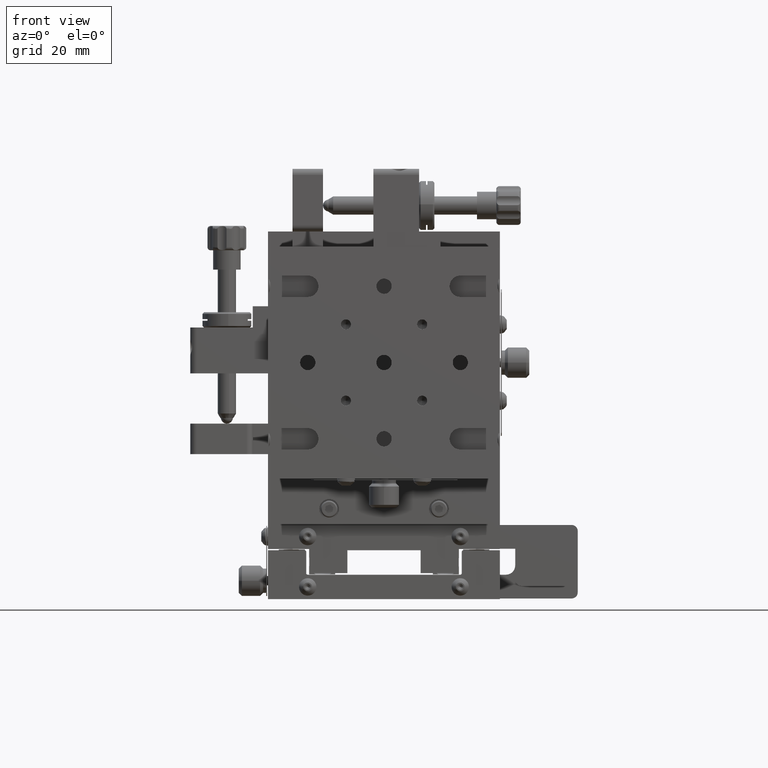
[diagram: clean part render]
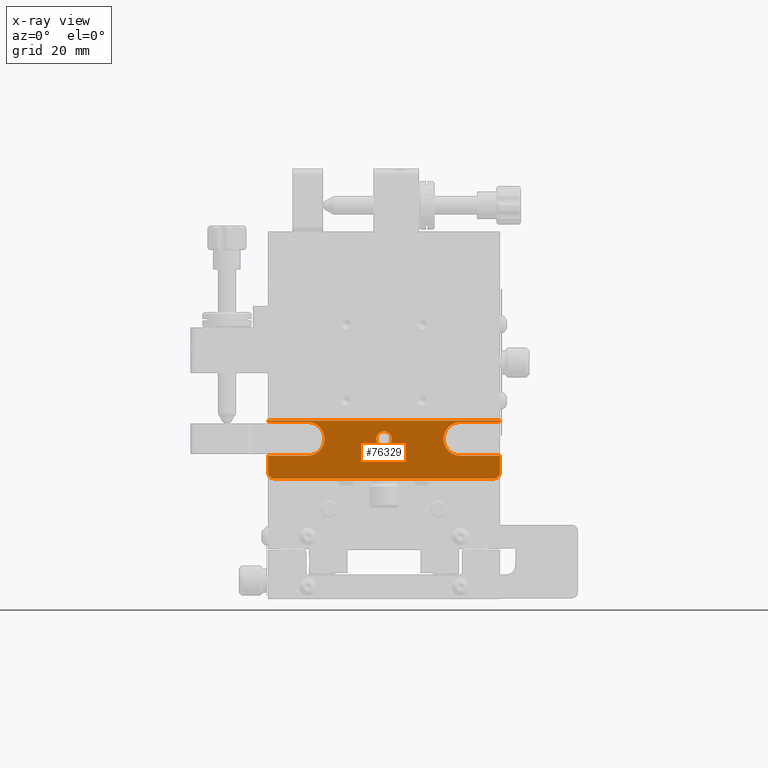
[diagram: x-ray — body ghosted, one internal face saturated and labeled with its STEP entity id]
A machine part, front view, then the same camera in x-ray: the body is ghosted and one INTERNAL B-rep face — a face not visible from any outside direction — is saturated and labeled: STEP entity #76329.
In plain terms, the highlighted planar face has unit normal (0, -1, 0).
Its self-contained STEP definition (entity closure, byte-faithful):
#2143 = VERTEX_POINT ( 'NONE', #3573 ) ;
#3573 = CARTESIAN_POINT ( 'NONE',  ( 31.61747346207639700, 8.990027520144551000, 113.7309604384505800 ) ) ;
#4471 = CIRCLE ( 'NONE', #90873, 2.500000000000002200 ) ;
#5085 = EDGE_CURVE ( 'NONE', #82467, #106534, #130219, .T. ) ;
#8032 = CARTESIAN_POINT ( 'NONE',  ( 6.617473462076397100, 8.990027520144551000, 108.2309604384505800 ) ) ;
#8376 = DIRECTION ( 'NONE',  ( 1.000000000000000000, 0.0000000000000000000, -5.337610695313253400E-016 ) ) ;
#9446 = CARTESIAN_POINT ( 'NONE',  ( -18.38252653792360300, 8.990027520144551000, 108.2309604384505900 ) ) ;
#9633 = ORIENTED_EDGE ( 'NONE', *, *, #42119, .F. ) ;
#10365 = DIRECTION ( 'NONE',  ( 0.0000000000000000000, 0.0000000000000000000, 1.000000000000000000 ) ) ;
#10935 = VECTOR ( 'NONE', #40386, 1000.000000000000000 ) ;
#11052 = EDGE_CURVE ( 'NONE', #2143, #80396, #120192, .T. ) ;
#11391 = CARTESIAN_POINT ( 'NONE',  ( -18.38252653792360300, 8.990027520144551000, 102.7309604384505900 ) ) ;
#12823 = CARTESIAN_POINT ( 'NONE',  ( -29.38252653792359900, 8.990027520144551000, 95.23096043845058000 ) ) ;
#13323 = VERTEX_POINT ( 'NONE', #109148 ) ;
#16205 = AXIS2_PLACEMENT_3D ( 'NONE', #124195, #62598, #42842 ) ;
#18679 = CARTESIAN_POINT ( 'NONE',  ( 42.61747346207639700, 8.990027520144551000, 97.23096043845058000 ) ) ;
#18685 = CARTESIAN_POINT ( 'NONE',  ( -31.38252653792360300, 8.990027520144551000, 95.23096043845058000 ) ) ;
#18710 = AXIS2_PLACEMENT_3D ( 'NONE', #9446, #99435, #19080 ) ;
#19080 = DIRECTION ( 'NONE',  ( 0.0000000000000000000, 0.0000000000000000000, 1.000000000000000000 ) ) ;
#20419 = DIRECTION ( 'NONE',  ( 0.0000000000000000000, -0.0000000000000000000, -1.000000000000000000 ) ) ;
#21317 = EDGE_CURVE ( 'NONE', #98525, #35397, #88778, .T. ) ;
#22374 = VERTEX_POINT ( 'NONE', #54025 ) ;
#22506 = VECTOR ( 'NONE', #85152, 1000.000000000000000 ) ;
#24073 = EDGE_LOOP ( 'NONE', ( #98714, #102158 ) ) ;
#24635 = VECTOR ( 'NONE', #114496, 1000.000000000000000 ) ;
#24991 = CARTESIAN_POINT ( 'NONE',  ( 6.617473462076397100, 8.990027520144551000, 113.7309604384505900 ) ) ;
#25516 = CARTESIAN_POINT ( 'NONE',  ( -18.38252653792360300, 8.990027520144551000, 113.7309604384505900 ) ) ;
#26096 = FACE_OUTER_BOUND ( 'NONE', #47783, .T. ) ;
#27272 = LINE ( 'NONE', #24991, #22506 ) ;
#28284 = VERTEX_POINT ( 'NONE', #68952 ) ;
#29923 = LINE ( 'NONE', #18685, #31420 ) ;
#31420 = VECTOR ( 'NONE', #129343, 1000.000000000000000 ) ;
#31532 = DIRECTION ( 'NONE',  ( 0.0000000000000000000, 0.0000000000000000000, 1.000000000000000000 ) ) ;
#31756 = VECTOR ( 'NONE', #95863, 1000.000000000000000 ) ;
#31932 = CARTESIAN_POINT ( 'NONE',  ( 44.61747346207639700, 8.990027520144551000, 114.2309604384505900 ) ) ;
#35397 = VERTEX_POINT ( 'NONE', #73575 ) ;
#37630 = CARTESIAN_POINT ( 'NONE',  ( 44.61747346207639700, 8.990027520144551000, 114.2309604384505900 ) ) ;
#38452 = VECTOR ( 'NONE', #8376, 1000.000000000000000 ) ;
#38964 = CARTESIAN_POINT ( 'NONE',  ( 6.617473462076397100, 8.990027520144551000, 108.2309604384505800 ) ) ;
#39905 = ORIENTED_EDGE ( 'NONE', *, *, #50976, .T. ) ;
#40386 = DIRECTION ( 'NONE',  ( -1.000000000000000000, -0.0000000000000000000, -0.0000000000000000000 ) ) ;
#40496 = EDGE_CURVE ( 'NONE', #122390, #98525, #80643, .T. ) ;
#40639 = EDGE_CURVE ( 'NONE', #52537, #68387, #27272, .T. ) ;
#41180 = EDGE_CURVE ( 'NONE', #48889, #28284, #50490, .T. ) ;
#42119 = EDGE_CURVE ( 'NONE', #2143, #122390, #106327, .T. ) ;
#42842 = DIRECTION ( 'NONE',  ( 0.0000000000000000000, 0.0000000000000000000, -1.000000000000000000 ) ) ;
#43948 = CARTESIAN_POINT ( 'NONE',  ( 44.61747346207639700, 8.990027520144551000, 95.23096043845058000 ) ) ;
#45869 = EDGE_CURVE ( 'NONE', #48889, #52537, #127371, .T. ) ;
#46819 = DIRECTION ( 'NONE',  ( 0.0000000000000000000, 0.0000000000000000000, -1.000000000000000000 ) ) ;
#47325 = ORIENTED_EDGE ( 'NONE', *, *, #61038, .T. ) ;
#47783 = EDGE_LOOP ( 'NONE', ( #50429, #9633, #48011, #52254, #85832, #47325, #39905, #112771, #74364, #84044, #69281, #81629, #105465, #99430 ) ) ;
#48011 = ORIENTED_EDGE ( 'NONE', *, *, #11052, .T. ) ;
#48889 = VERTEX_POINT ( 'NONE', #11391 ) ;
#48974 = VECTOR ( 'NONE', #10365, 1000.000000000000000 ) ;
#50429 = ORIENTED_EDGE ( 'NONE', *, *, #40496, .F. ) ;
#50490 = LINE ( 'NONE', #97182, #31756 ) ;
#50976 = EDGE_CURVE ( 'NONE', #13323, #82467, #95681, .T. ) ;
#51332 = CARTESIAN_POINT ( 'NONE',  ( 44.61747346207639700, 8.990027520144551000, 95.23096043845058000 ) ) ;
#52254 = ORIENTED_EDGE ( 'NONE', *, *, #60799, .T. ) ;
#52537 = VERTEX_POINT ( 'NONE', #25516 ) ;
#54025 = CARTESIAN_POINT ( 'NONE',  ( 44.61747346207639700, 8.990027520144551000, 102.7309604384505900 ) ) ;
#54040 = DIRECTION ( 'NONE',  ( 0.0000000000000000000, 0.0000000000000000000, 1.000000000000000000 ) ) ;
#58791 = DIRECTION ( 'NONE',  ( 0.0000000000000000000, 0.0000000000000000000, -1.000000000000000000 ) ) ;
#60267 = DIRECTION ( 'NONE',  ( 0.0000000000000000000, -1.000000000000000000, 0.0000000000000000000 ) ) ;
#60799 = EDGE_CURVE ( 'NONE', #80396, #22374, #91956, .T. ) ;
#61038 = EDGE_CURVE ( 'NONE', #67862, #13323, #65007, .T. ) ;
#61170 = DIRECTION ( 'NONE',  ( -0.0000000000000000000, 1.000000000000000000, -0.0000000000000000000 ) ) ;
#62598 = DIRECTION ( 'NONE',  ( -0.0000000000000000000, -1.000000000000000000, 0.0000000000000000000 ) ) ;
#62991 = CARTESIAN_POINT ( 'NONE',  ( -31.38252653792360300, 8.990027520144551000, 97.23096043845058000 ) ) ;
#64670 = AXIS2_PLACEMENT_3D ( 'NONE', #67428, #128589, #46819 ) ;
#65007 = CIRCLE ( 'NONE', #73215, 2.000000000000001800 ) ;
#67428 = CARTESIAN_POINT ( 'NONE',  ( -29.38252653792359900, 8.990027520144551000, 97.23096043845058000 ) ) ;
#67852 = LINE ( 'NONE', #110436, #48974 ) ;
#67862 = VERTEX_POINT ( 'NONE', #71304 ) ;
#68387 = VERTEX_POINT ( 'NONE', #119880 ) ;
#68952 = CARTESIAN_POINT ( 'NONE',  ( -31.38252653792360300, 8.990027520144551000, 102.7309604384505900 ) ) ;
#69281 = ORIENTED_EDGE ( 'NONE', *, *, #45869, .T. ) ;
#69974 = FACE_BOUND ( 'NONE', #24073, .T. ) ;
#71304 = CARTESIAN_POINT ( 'NONE',  ( 44.61747346207639700, 8.990027520144551000, 97.23096043845058000 ) ) ;
#73215 = AXIS2_PLACEMENT_3D ( 'NONE', #18679, #61170, #118346 ) ;
#73575 = CARTESIAN_POINT ( 'NONE',  ( -31.38252653792360300, 8.990027520144551000, 114.2309604384505900 ) ) ;
#74364 = ORIENTED_EDGE ( 'NONE', *, *, #126423, .T. ) ;
#74465 = CARTESIAN_POINT ( 'NONE',  ( 31.61747346207639700, 8.990027520144551000, 102.7309604384505900 ) ) ;
#76329 = ADVANCED_FACE ( 'NONE', ( #69974, #26096 ), #90212, .F. ) ;
#80396 = VERTEX_POINT ( 'NONE', #74465 ) ;
#80643 = LINE ( 'NONE', #43948, #82194 ) ;
#81012 = VERTEX_POINT ( 'NONE', #107345 ) ;
#81629 = ORIENTED_EDGE ( 'NONE', *, *, #40639, .T. ) ;
#82194 = VECTOR ( 'NONE', #54040, 1000.000000000000000 ) ;
#82467 = VERTEX_POINT ( 'NONE', #12823 ) ;
#84044 = ORIENTED_EDGE ( 'NONE', *, *, #41180, .F. ) ;
#85152 = DIRECTION ( 'NONE',  ( -1.000000000000000000, 0.0000000000000000000, 0.0000000000000000000 ) ) ;
#85636 = VECTOR ( 'NONE', #121626, 1000.000000000000000 ) ;
#85832 = ORIENTED_EDGE ( 'NONE', *, *, #122093, .F. ) ;
#88271 = LINE ( 'NONE', #117882, #119685 ) ;
#88667 = DIRECTION ( 'NONE',  ( 0.0000000000000000000, 0.0000000000000000000, -1.000000000000000000 ) ) ;
#88778 = LINE ( 'NONE', #31932, #85636 ) ;
#89979 = DIRECTION ( 'NONE',  ( 0.0000000000000000000, -1.000000000000000000, 0.0000000000000000000 ) ) ;
#90212 = PLANE ( 'NONE',  #102435 ) ;
#90873 = AXIS2_PLACEMENT_3D ( 'NONE', #38964, #89979, #88667 ) ;
#91956 = LINE ( 'NONE', #127357, #38452 ) ;
#93268 = CARTESIAN_POINT ( 'NONE',  ( 44.61747346207639700, 8.990027520144551000, 113.7309604384505800 ) ) ;
#95681 = LINE ( 'NONE', #51332, #10935 ) ;
#95863 = DIRECTION ( 'NONE',  ( -1.000000000000000000, 0.0000000000000000000, 0.0000000000000000000 ) ) ;
#96759 = EDGE_CURVE ( 'NONE', #68387, #35397, #29923, .T. ) ;
#97182 = CARTESIAN_POINT ( 'NONE',  ( 6.617473462076397100, 8.990027520144551000, 102.7309604384505900 ) ) ;
#98525 = VERTEX_POINT ( 'NONE', #37630 ) ;
#98714 = ORIENTED_EDGE ( 'NONE', *, *, #111123, .T. ) ;
#99430 = ORIENTED_EDGE ( 'NONE', *, *, #21317, .F. ) ;
#99435 = DIRECTION ( 'NONE',  ( -0.0000000000000000000, -1.000000000000000000, 0.0000000000000000000 ) ) ;
#102158 = ORIENTED_EDGE ( 'NONE', *, *, #104390, .T. ) ;
#102435 = AXIS2_PLACEMENT_3D ( 'NONE', #109569, #60267, #20419 ) ;
#104390 = EDGE_CURVE ( 'NONE', #119417, #81012, #126713, .T. ) ;
#104398 = CARTESIAN_POINT ( 'NONE',  ( 31.61747346207639700, 8.990027520144551000, 113.7309604384505800 ) ) ;
#105465 = ORIENTED_EDGE ( 'NONE', *, *, #96759, .T. ) ;
#105556 = AXIS2_PLACEMENT_3D ( 'NONE', #8032, #109816, #58791 ) ;
#106327 = LINE ( 'NONE', #104398, #24635 ) ;
#106534 = VERTEX_POINT ( 'NONE', #62991 ) ;
#107345 = CARTESIAN_POINT ( 'NONE',  ( 6.617473462076397100, 8.990027520144551000, 110.7309604384505800 ) ) ;
#109148 = CARTESIAN_POINT ( 'NONE',  ( 42.61747346207639700, 8.990027520144551000, 95.23096043845058000 ) ) ;
#109569 = CARTESIAN_POINT ( 'NONE',  ( 44.61747346207639700, 8.990027520144551000, 95.23096043845058000 ) ) ;
#109816 = DIRECTION ( 'NONE',  ( 0.0000000000000000000, -1.000000000000000000, 0.0000000000000000000 ) ) ;
#110436 = CARTESIAN_POINT ( 'NONE',  ( -31.38252653792360300, 8.990027520144551000, 95.23096043845058000 ) ) ;
#111123 = EDGE_CURVE ( 'NONE', #81012, #119417, #4471, .T. ) ;
#111150 = CARTESIAN_POINT ( 'NONE',  ( 6.617473462076397100, 8.990027520144551000, 105.7309604384505800 ) ) ;
#112771 = ORIENTED_EDGE ( 'NONE', *, *, #5085, .T. ) ;
#114496 = DIRECTION ( 'NONE',  ( 1.000000000000000000, 0.0000000000000000000, 0.0000000000000000000 ) ) ;
#117882 = CARTESIAN_POINT ( 'NONE',  ( 44.61747346207639700, 8.990027520144551000, 95.23096043845058000 ) ) ;
#118346 = DIRECTION ( 'NONE',  ( 0.0000000000000000000, 0.0000000000000000000, -1.000000000000000000 ) ) ;
#119417 = VERTEX_POINT ( 'NONE', #111150 ) ;
#119685 = VECTOR ( 'NONE', #31532, 1000.000000000000000 ) ;
#119880 = CARTESIAN_POINT ( 'NONE',  ( -31.38252653792360300, 8.990027520144551000, 113.7309604384505900 ) ) ;
#120192 = CIRCLE ( 'NONE', #16205, 5.500000000000005300 ) ;
#121626 = DIRECTION ( 'NONE',  ( -1.000000000000000000, -0.0000000000000000000, -0.0000000000000000000 ) ) ;
#122093 = EDGE_CURVE ( 'NONE', #67862, #22374, #88271, .T. ) ;
#122390 = VERTEX_POINT ( 'NONE', #93268 ) ;
#124195 = CARTESIAN_POINT ( 'NONE',  ( 31.61747346207639700, 8.990027520144551000, 108.2309604384505900 ) ) ;
#126423 = EDGE_CURVE ( 'NONE', #106534, #28284, #67852, .T. ) ;
#126713 = CIRCLE ( 'NONE', #105556, 2.500000000000002200 ) ;
#127357 = CARTESIAN_POINT ( 'NONE',  ( 31.61747346207639700, 8.990027520144551000, 102.7309604384505900 ) ) ;
#127371 = CIRCLE ( 'NONE', #18710, 5.500000000000005300 ) ;
#128589 = DIRECTION ( 'NONE',  ( -0.0000000000000000000, 1.000000000000000000, -0.0000000000000000000 ) ) ;
#129343 = DIRECTION ( 'NONE',  ( 0.0000000000000000000, 0.0000000000000000000, 1.000000000000000000 ) ) ;
#130219 = CIRCLE ( 'NONE', #64670, 2.000000000000001800 ) ;